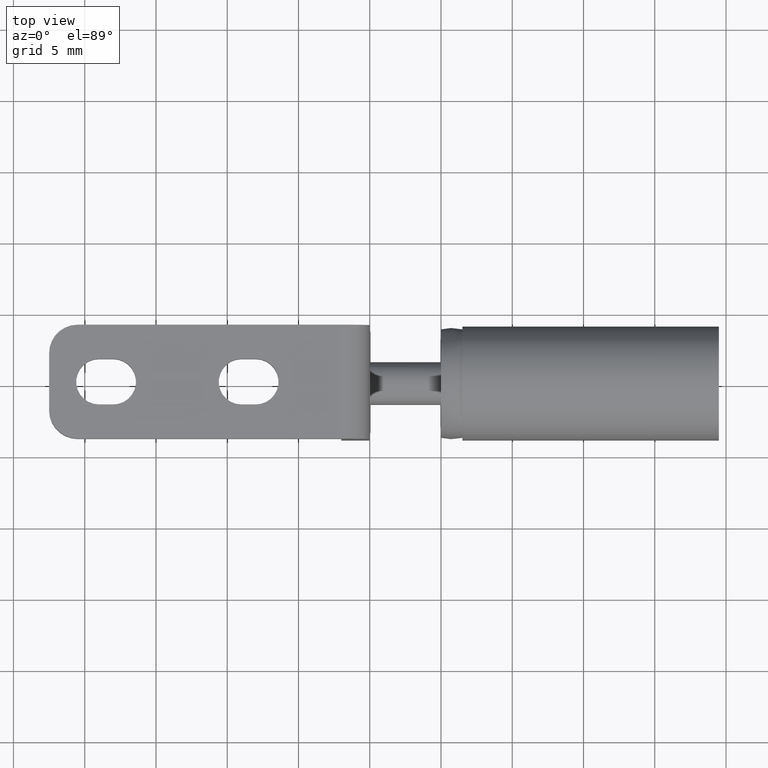
[diagram: clean part render]
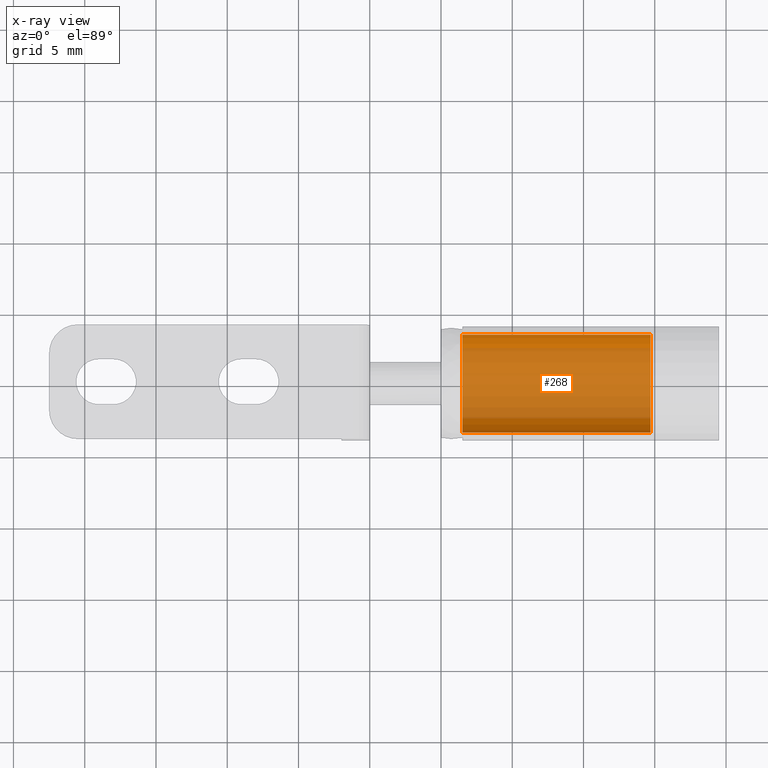
[diagram: x-ray — body ghosted, one internal face saturated and labeled with its STEP entity id]
A machine part, top view, then the same camera in x-ray: the body is ghosted and one INTERNAL B-rep face — a face not visible from any outside direction — is saturated and labeled: STEP entity #268.
In plain terms, the highlighted cylindrical surface (partial cylindrical patch) has radius 3.45 mm, axis along (1, 0, -0).
Its self-contained STEP definition (entity closure, byte-faithful):
#268=ADVANCED_FACE('',(#441),#440,.T.);
#440=CYLINDRICAL_SURFACE('',#1385,3.45000000000E+00);
#441=FACE_OUTER_BOUND('',#1386,.T.);
#1382=CARTESIAN_POINT('',(2.00300000000E+01,1.54150995264E-14,-1.58120228120E-13));
#1383=DIRECTION('',(1.00000000000E+00,2.19080564571E-15,-2.27931915247E-14));
#1384=DIRECTION('',(-5.14886040407E-16,-9.93009526364E-01,-1.18034234657E-01));
#1385=AXIS2_PLACEMENT_3D('',#1382,#1383,#1384);
#1386=EDGE_LOOP('',(#1952,#1953,#1954,#1955));
#1952=ORIENTED_EDGE('',*,*,#2433,.T.);
#1953=ORIENTED_EDGE('',*,*,#2444,.F.);
#1954=ORIENTED_EDGE('',*,*,#2439,.F.);
#1955=ORIENTED_EDGE('',*,*,#2445,.T.);
#2433=EDGE_CURVE('',#2786,#2778,#2787,.T.);
#2439=EDGE_CURVE('',#2821,#2828,#2829,.T.);
#2444=EDGE_CURVE('',#2828,#2778,#2862,.T.);
#2445=EDGE_CURVE('',#2821,#2786,#2868,.T.);
#2778=VERTEX_POINT('',#4436);
#2786=VERTEX_POINT('',#4442);
#2787=CIRCLE('',#4446,3.45000000000E+00);
#2821=VERTEX_POINT('',#4467);
#2828=VERTEX_POINT('',#4472);
#2829=CIRCLE('',#4476,3.45000000004E+00);
#2862=(BOUNDED_CURVE() B_SPLINE_CURVE(1,(#4496,#4497),.UNSPECIFIED.,.F.,.F.) B_SPLINE_CURVE_WITH_KNOTS((2,2),(8.33333343261E-02,9.16666667006E-01),.UNSPECIFIED.) CURVE() GEOMETRIC_REPRESENTATION_ITEM() RATIONAL_B_SPLINE_CURVE((1.00000000000E+00,1.00000000000E+00)) REPRESENTATION_ITEM('') );
#2868=(BOUNDED_CURVE() B_SPLINE_CURVE(1,(#4498,#4499),.UNSPECIFIED.,.F.,.F.) B_SPLINE_CURVE_WITH_KNOTS((2,2),(8.33333333333E-02,9.16666666667E-01),.UNSPECIFIED.) CURVE() GEOMETRIC_REPRESENTATION_ITEM() RATIONAL_B_SPLINE_CURVE((7.50000000000E-01,7.50000000000E-01)) REPRESENTATION_ITEM('') );
#4436=CARTESIAN_POINT('',(1.97000000000E+01,-3.42588301487E+00,-4.07216856741E-01));
#4442=CARTESIAN_POINT('',(1.97000000000E+01,3.42581243258E+00,4.07810221554E-01));
#4443=CARTESIAN_POINT('',(1.97000000000E+01,2.22044604925E-16,0.00000000000E+00));
#4444=DIRECTION('',(-1.00000000000E+00,-1.83907634385E-15,6.74760378263E-15));
#4445=DIRECTION('',(6.74760378263E-15,-1.94289029309E-16,1.00000000000E+00));
#4446=AXIS2_PLACEMENT_3D('',#4443,#4444,#4445);
#4467=CARTESIAN_POINT('',(6.50000000000E+00,3.42581243266E+00,4.07810221561E-01));
#4472=CARTESIAN_POINT('',(6.50000000000E+00,-3.42588301487E+00,-4.07216856740E-01));
#4473=CARTESIAN_POINT('',(6.50000000000E+00,3.72422093164E-11,3.95896648797E-11));
#4474=DIRECTION('',(-1.00000000000E+00,-2.73059558032E-16,7.72329060603E-16));
#4475=DIRECTION('',(7.72329060606E-16,-1.07949977461E-11,1.00000000000E+00));
#4476=AXIS2_PLACEMENT_3D('',#4473,#4474,#4475);
#4496=CARTESIAN_POINT('',(6.50000001572E+00,-3.42588286595E+00,-4.07218109566E-01));
#4497=CARTESIAN_POINT('',(1.97000000054E+01,-3.42588286595E+00,-4.07218109566E-01));
#4498=CARTESIAN_POINT('',(6.50000000000E+00,3.42588286595E+00,4.07218109566E-01));
#4499=CARTESIAN_POINT('',(1.97000000000E+01,3.42588286595E+00,4.07218109566E-01));